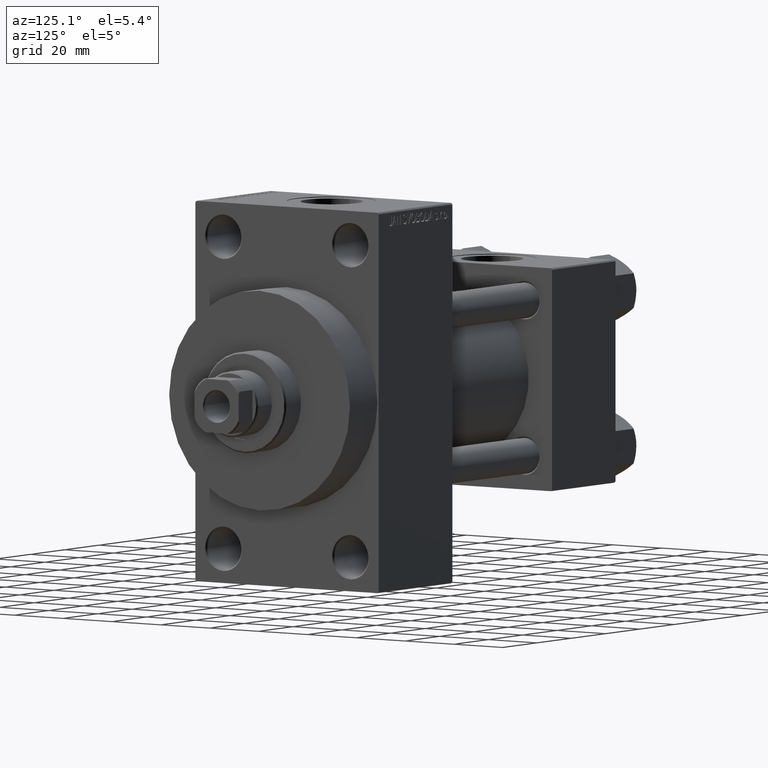
[diagram: clean part render]
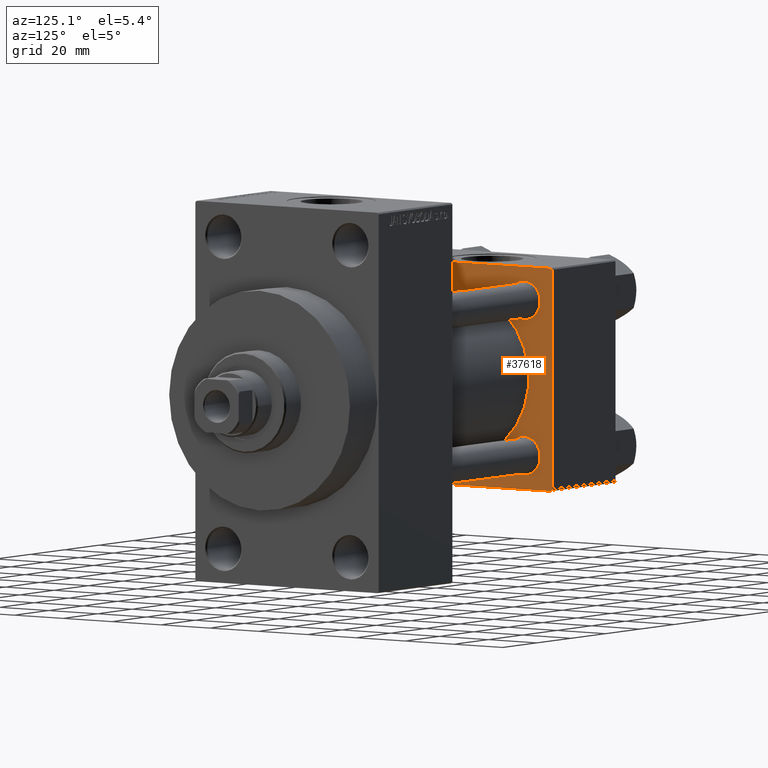
[diagram: same view with one face highlighted and labeled with its STEP entity id]
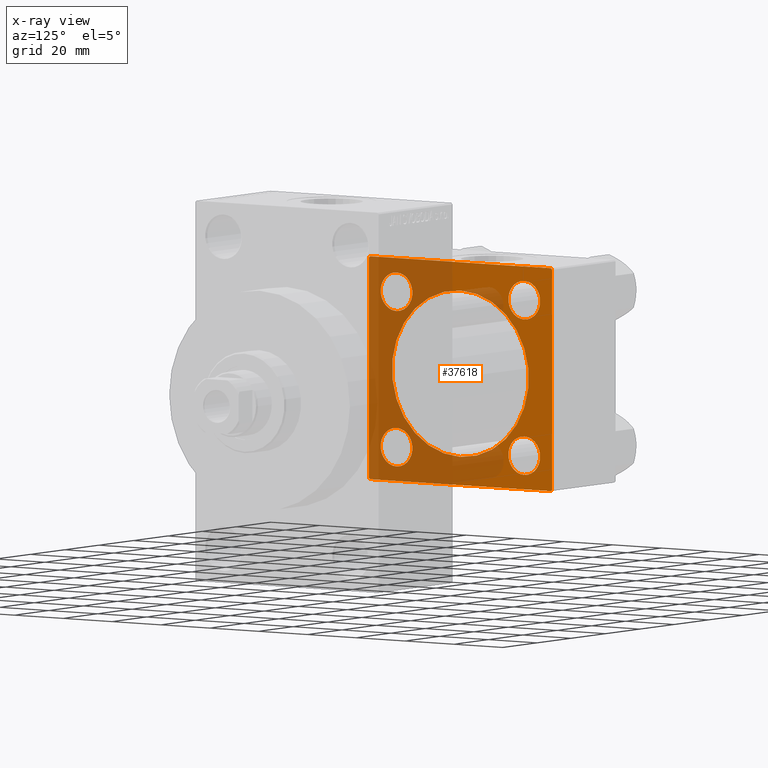
[diagram: x-ray of the same camera — body ghosted, the highlighted face saturated]
A machine part, auxiliary view. The second image highlights one B-rep face of the part: STEP entity #37618.
The next image is the same camera in x-ray: the body ghosted, the highlighted face saturated — about 56% of this face is hidden behind the body in this view.
In plain terms, the highlighted planar face has unit normal (-1, 0, 0).
Its self-contained STEP definition (entity closure, byte-faithful):
#270 = ORIENTED_EDGE ( 'NONE', *, *, #38122, .F. ) ;
#307 = LINE ( 'NONE', #7922, #35768 ) ;
#477 = EDGE_CURVE ( 'NONE', #6112, #10044, #6726, .T. ) ;
#540 = CARTESIAN_POINT ( 'NONE',  ( 37.00000000000000000, -2.602085213965210642E-15, 0.000000000000000000 ) ) ;
#747 = DIRECTION ( 'NONE',  ( -1.000000000000000000, 0.000000000000000000, -0.000000000000000000 ) ) ;
#1192 = DIRECTION ( 'NONE',  ( 0.000000000000000000, 0.000000000000000000, 1.000000000000000000 ) ) ;
#1312 = CIRCLE ( 'NONE', #18065, 28.00000000000000000 ) ;
#1314 = VERTEX_POINT ( 'NONE', #17971 ) ;
#1415 = ORIENTED_EDGE ( 'NONE', *, *, #32210, .T. ) ;
#1612 = CARTESIAN_POINT ( 'NONE',  ( 37.00000000000000000, 26.14999999999999858, 32.65000000000001279 ) ) ;
#2035 = FACE_BOUND ( 'NONE', #31685, .T. ) ;
#2546 = CARTESIAN_POINT ( 'NONE',  ( 37.00000000000000000, 26.14999999999999858, -19.65000000000000213 ) ) ;
#2827 = ORIENTED_EDGE ( 'NONE', *, *, #26771, .T. ) ;
#3508 = EDGE_CURVE ( 'NONE', #39314, #10044, #37313, .T. ) ;
#3521 = EDGE_CURVE ( 'NONE', #39314, #44108, #19188, .T. ) ;
#4007 = DIRECTION ( 'NONE',  ( 0.000000000000000000, -0.7071067811865474617, 0.7071067811865474617 ) ) ;
#4252 = LINE ( 'NONE', #25970, #19437 ) ;
#5144 = FACE_OUTER_BOUND ( 'NONE', #37288, .T. ) ;
#5381 = FACE_BOUND ( 'NONE', #20561, .T. ) ;
#6112 = VERTEX_POINT ( 'NONE', #38969 ) ;
#6436 = CARTESIAN_POINT ( 'NONE',  ( 37.00000000000000000, 36.99999999999997868, -37.50000000000000000 ) ) ;
#6726 = LINE ( 'NONE', #20375, #36550 ) ;
#6746 = CARTESIAN_POINT ( 'NONE',  ( 37.00000000000000000, -26.14999999999999147, 26.15000000000000924 ) ) ;
#6756 = ORIENTED_EDGE ( 'NONE', *, *, #28096, .T. ) ;
#6950 = DIRECTION ( 'NONE',  ( 0.000000000000000000, 0.000000000000000000, 1.000000000000000000 ) ) ;
#7117 = AXIS2_PLACEMENT_3D ( 'NONE', #29935, #15855, #26578 ) ;
#7324 = EDGE_CURVE ( 'NONE', #1314, #36589, #32040, .T. ) ;
#7671 = CARTESIAN_POINT ( 'NONE',  ( 37.00000000000000000, -26.14999999999999147, 32.65000000000007674 ) ) ;
#7681 = EDGE_LOOP ( 'NONE', ( #40381, #28949 ) ) ;
#7688 = VECTOR ( 'NONE', #8894, 1000.000000000000000 ) ;
#7782 = DIRECTION ( 'NONE',  ( -0.000000000000000000, -0.7071067811865474617, -0.7071067811865474617 ) ) ;
#7922 = CARTESIAN_POINT ( 'NONE',  ( 37.00000000000000000, -37.50000000000000711, 37.49999999999999289 ) ) ;
#8663 = CIRCLE ( 'NONE', #7117, 6.500000000000002665 ) ;
#8799 = CIRCLE ( 'NONE', #35463, 6.500000000000002665 ) ;
#8894 = DIRECTION ( 'NONE',  ( 0.000000000000000000, -1.000000000000000000, -9.251858538542972814E-17 ) ) ;
#9134 = CARTESIAN_POINT ( 'NONE',  ( 37.00000000000000000, 37.49999999999999289, -36.99999999999998579 ) ) ;
#9427 = CARTESIAN_POINT ( 'NONE',  ( 37.00000000000000000, -26.14999999999999147, 19.64999999999994529 ) ) ;
#9481 = AXIS2_PLACEMENT_3D ( 'NONE', #18384, #15760, #1192 ) ;
#9520 = VERTEX_POINT ( 'NONE', #32893 ) ;
#10044 = VERTEX_POINT ( 'NONE', #36777 ) ;
#10727 = EDGE_CURVE ( 'NONE', #19405, #15577, #33696, .T. ) ;
#11262 = CARTESIAN_POINT ( 'NONE',  ( 37.00000000000000000, -26.14999999999999147, 26.15000000000000924 ) ) ;
#11985 = AXIS2_PLACEMENT_3D ( 'NONE', #26631, #38078, #23766 ) ;
#12166 = VERTEX_POINT ( 'NONE', #22177 ) ;
#12819 = ORIENTED_EDGE ( 'NONE', *, *, #3508, .T. ) ;
#13787 = VECTOR ( 'NONE', #44486, 1000.000000000000114 ) ;
#14129 = DIRECTION ( 'NONE',  ( -1.000000000000000000, 0.000000000000000000, -0.000000000000000000 ) ) ;
#14363 = DIRECTION ( 'NONE',  ( -1.000000000000000000, 0.000000000000000000, -0.000000000000000000 ) ) ;
#14381 = DIRECTION ( 'NONE',  ( 0.000000000000000000, 9.251858538542971581E-17, -1.000000000000000000 ) ) ;
#14679 = EDGE_CURVE ( 'NONE', #36589, #1314, #8663, .T. ) ;
#14690 = VERTEX_POINT ( 'NONE', #26115 ) ;
#15239 = VERTEX_POINT ( 'NONE', #20651 ) ;
#15577 = VERTEX_POINT ( 'NONE', #7671 ) ;
#15760 = DIRECTION ( 'NONE',  ( -1.000000000000000000, 0.000000000000000000, -0.000000000000000000 ) ) ;
#15771 = DIRECTION ( 'NONE',  ( -1.000000000000000000, 0.000000000000000000, -0.000000000000000000 ) ) ;
#15855 = DIRECTION ( 'NONE',  ( -1.000000000000000000, 0.000000000000000000, -0.000000000000000000 ) ) ;
#15907 = FACE_BOUND ( 'NONE', #7681, .T. ) ;
#16154 = EDGE_LOOP ( 'NONE', ( #34438, #23842 ) ) ;
#16312 = CARTESIAN_POINT ( 'NONE',  ( 37.00000000000000000, 37.49999999999999289, -37.50000000000000000 ) ) ;
#17618 = EDGE_CURVE ( 'NONE', #19380, #14690, #33135, .T. ) ;
#17689 = CARTESIAN_POINT ( 'NONE',  ( 37.00000000000000000, 8.269258236473776482E-16, -28.00000000000000000 ) ) ;
#17971 = CARTESIAN_POINT ( 'NONE',  ( 37.00000000000000000, 26.14999999999999858, 19.64999999999999858 ) ) ;
#18065 = AXIS2_PLACEMENT_3D ( 'NONE', #540, #36072, #6950 ) ;
#18384 = CARTESIAN_POINT ( 'NONE',  ( 37.00000000000000000, 26.14999999999999858, -26.15000000000000213 ) ) ;
#18782 = CARTESIAN_POINT ( 'NONE',  ( 37.00000000000000000, -37.50000000000000711, 36.99999999999999289 ) ) ;
#19040 = DIRECTION ( 'NONE',  ( 0.000000000000000000, 0.000000000000000000, 1.000000000000000000 ) ) ;
#19188 = LINE ( 'NONE', #16312, #7688 ) ;
#19380 = VERTEX_POINT ( 'NONE', #28276 ) ;
#19405 = VERTEX_POINT ( 'NONE', #9427 ) ;
#19437 = VECTOR ( 'NONE', #4007, 1000.000000000000114 ) ;
#20375 = CARTESIAN_POINT ( 'NONE',  ( 37.00000000000000000, 37.49999999999999289, 37.50000000000000000 ) ) ;
#20561 = EDGE_LOOP ( 'NONE', ( #44211, #25828 ) ) ;
#20651 = CARTESIAN_POINT ( 'NONE',  ( 37.00000000000000000, -37.50000000000000711, 36.99999999999999289 ) ) ;
#21094 = AXIS2_PLACEMENT_3D ( 'NONE', #11262, #14129, #43260 ) ;
#21191 = AXIS2_PLACEMENT_3D ( 'NONE', #38648, #15771, #26729 ) ;
#21323 = DIRECTION ( 'NONE',  ( -1.000000000000000000, 0.000000000000000000, -0.000000000000000000 ) ) ;
#21803 = DIRECTION ( 'NONE',  ( 0.000000000000000000, 0.000000000000000000, 1.000000000000000000 ) ) ;
#22177 = CARTESIAN_POINT ( 'NONE',  ( 37.00000000000000000, 36.99999999999999289, 37.50000000000000000 ) ) ;
#22686 = ORIENTED_EDGE ( 'NONE', *, *, #30071, .T. ) ;
#23292 = DIRECTION ( 'NONE',  ( 1.000000000000000000, -0.000000000000000000, 0.000000000000000000 ) ) ;
#23526 = FACE_BOUND ( 'NONE', #40398, .T. ) ;
#23766 = DIRECTION ( 'NONE',  ( -0.000000000000000000, 0.000000000000000000, 1.000000000000000000 ) ) ;
#23842 = ORIENTED_EDGE ( 'NONE', *, *, #14679, .T. ) ;
#24046 = AXIS2_PLACEMENT_3D ( 'NONE', #26037, #747, #40115 ) ;
#24073 = LINE ( 'NONE', #32097, #25454 ) ;
#24168 = CIRCLE ( 'NONE', #33299, 28.00000000000000000 ) ;
#24535 = DIRECTION ( 'NONE',  ( -1.000000000000000000, 0.000000000000000000, -0.000000000000000000 ) ) ;
#24696 = CIRCLE ( 'NONE', #9481, 6.500000000000002665 ) ;
#24930 = DIRECTION ( 'NONE',  ( 0.000000000000000000, 0.7071067811865524577, -0.7071067811865426878 ) ) ;
#25454 = VECTOR ( 'NONE', #24930, 1000.000000000000000 ) ;
#25828 = ORIENTED_EDGE ( 'NONE', *, *, #38184, .T. ) ;
#25871 = CARTESIAN_POINT ( 'NONE',  ( 37.00000000000000000, -37.50000000000000000, -37.00000000000003553 ) ) ;
#25970 = CARTESIAN_POINT ( 'NONE',  ( 37.00000000000000000, 36.99999999999999289, 37.50000000000000000 ) ) ;
#26037 = CARTESIAN_POINT ( 'NONE',  ( 37.00000000000000000, -26.14999999999999147, -26.15000000000000924 ) ) ;
#26115 = CARTESIAN_POINT ( 'NONE',  ( 37.00000000000000000, -26.14999999999999147, -19.64999999999995239 ) ) ;
#26520 = VECTOR ( 'NONE', #45352, 1000.000000000000000 ) ;
#26578 = DIRECTION ( 'NONE',  ( 0.000000000000000000, 0.000000000000000000, 1.000000000000000000 ) ) ;
#26631 = CARTESIAN_POINT ( 'NONE',  ( 37.00000000000000000, 0.000000000000000000, 0.000000000000000000 ) ) ;
#26729 = DIRECTION ( 'NONE',  ( 0.000000000000000000, 0.000000000000000000, 1.000000000000000000 ) ) ;
#26771 = EDGE_CURVE ( 'NONE', #29746, #44108, #24073, .T. ) ;
#27106 = FACE_BOUND ( 'NONE', #16154, .T. ) ;
#27675 = LINE ( 'NONE', #37698, #26520 ) ;
#28096 = EDGE_CURVE ( 'NONE', #33599, #32996, #24696, .T. ) ;
#28276 = CARTESIAN_POINT ( 'NONE',  ( 37.00000000000000000, -26.14999999999999147, -32.65000000000006963 ) ) ;
#28827 = CARTESIAN_POINT ( 'NONE',  ( 37.00000000000000000, 26.14999999999999858, 26.15000000000000213 ) ) ;
#28949 = ORIENTED_EDGE ( 'NONE', *, *, #40418, .T. ) ;
#29160 = CARTESIAN_POINT ( 'NONE',  ( 37.00000000000000000, 26.14999999999999858, -26.15000000000000213 ) ) ;
#29487 = VECTOR ( 'NONE', #7782, 1000.000000000000114 ) ;
#29746 = VERTEX_POINT ( 'NONE', #25871 ) ;
#29935 = CARTESIAN_POINT ( 'NONE',  ( 37.00000000000000000, 26.14999999999999858, 26.15000000000000213 ) ) ;
#30071 = EDGE_CURVE ( 'NONE', #32996, #33599, #8799, .T. ) ;
#30455 = PLANE ( 'NONE',  #11985 ) ;
#30526 = ORIENTED_EDGE ( 'NONE', *, *, #40483, .T. ) ;
#31434 = ORIENTED_EDGE ( 'NONE', *, *, #37496, .T. ) ;
#31685 = EDGE_LOOP ( 'NONE', ( #6756, #22686 ) ) ;
#32040 = CIRCLE ( 'NONE', #38156, 6.500000000000002665 ) ;
#32097 = CARTESIAN_POINT ( 'NONE',  ( 37.00000000000000000, -37.00000000000002132, -37.50000000000000711 ) ) ;
#32210 = EDGE_CURVE ( 'NONE', #6112, #12166, #4252, .T. ) ;
#32275 = DIRECTION ( 'NONE',  ( 0.000000000000000000, 0.000000000000000000, -1.000000000000000000 ) ) ;
#32426 = ORIENTED_EDGE ( 'NONE', *, *, #477, .F. ) ;
#32504 = VERTEX_POINT ( 'NONE', #46347 ) ;
#32893 = CARTESIAN_POINT ( 'NONE',  ( 37.00000000000000000, -37.00000000000000711, 37.49999999999999289 ) ) ;
#32996 = VERTEX_POINT ( 'NONE', #2546 ) ;
#33135 = CIRCLE ( 'NONE', #24046, 6.500000000000057732 ) ;
#33299 = AXIS2_PLACEMENT_3D ( 'NONE', #36667, #23292, #34266 ) ;
#33385 = CARTESIAN_POINT ( 'NONE',  ( 37.00000000000000000, 26.14999999999999858, -32.65000000000000568 ) ) ;
#33599 = VERTEX_POINT ( 'NONE', #33385 ) ;
#33696 = CIRCLE ( 'NONE', #39772, 6.500000000000064837 ) ;
#34266 = DIRECTION ( 'NONE',  ( 0.000000000000000000, 0.000000000000000000, 1.000000000000000000 ) ) ;
#34438 = ORIENTED_EDGE ( 'NONE', *, *, #7324, .T. ) ;
#35463 = AXIS2_PLACEMENT_3D ( 'NONE', #29160, #14363, #36312 ) ;
#35768 = VECTOR ( 'NONE', #14381, 1000.000000000000000 ) ;
#36072 = DIRECTION ( 'NONE',  ( 1.000000000000000000, -0.000000000000000000, 0.000000000000000000 ) ) ;
#36312 = DIRECTION ( 'NONE',  ( 0.000000000000000000, 0.000000000000000000, 1.000000000000000000 ) ) ;
#36550 = VECTOR ( 'NONE', #32275, 1000.000000000000000 ) ;
#36589 = VERTEX_POINT ( 'NONE', #1612 ) ;
#36667 = CARTESIAN_POINT ( 'NONE',  ( 37.00000000000000000, -2.602085213965210642E-15, 0.000000000000000000 ) ) ;
#36777 = CARTESIAN_POINT ( 'NONE',  ( 37.00000000000000000, 37.49999999999999289, -36.99999999999998579 ) ) ;
#37288 = EDGE_LOOP ( 'NONE', ( #46320, #12819, #32426, #1415, #30526, #31434, #45777, #2827 ) ) ;
#37313 = LINE ( 'NONE', #9134, #13787 ) ;
#37496 = EDGE_CURVE ( 'NONE', #9520, #15239, #43602, .T. ) ;
#37551 = EDGE_CURVE ( 'NONE', #32504, #43049, #24168, .T. ) ;
#37618 = ADVANCED_FACE ( 'NONE', ( #15907, #2035, #5381, #27106, #23526, #5144 ), #30455, .F. ) ;
#37698 = CARTESIAN_POINT ( 'NONE',  ( 37.00000000000000000, 37.49999999999999289, 37.50000000000000000 ) ) ;
#37890 = CIRCLE ( 'NONE', #21094, 6.500000000000064837 ) ;
#38078 = DIRECTION ( 'NONE',  ( -1.000000000000000000, 0.000000000000000000, -0.000000000000000000 ) ) ;
#38122 = EDGE_CURVE ( 'NONE', #43049, #32504, #1312, .T. ) ;
#38156 = AXIS2_PLACEMENT_3D ( 'NONE', #28827, #24535, #19040 ) ;
#38184 = EDGE_CURVE ( 'NONE', #15577, #19405, #37890, .T. ) ;
#38648 = CARTESIAN_POINT ( 'NONE',  ( 37.00000000000000000, -26.14999999999999147, -26.15000000000000924 ) ) ;
#38969 = CARTESIAN_POINT ( 'NONE',  ( 37.00000000000000000, 37.49999999999999289, 37.00000000000000000 ) ) ;
#39314 = VERTEX_POINT ( 'NONE', #6436 ) ;
#39772 = AXIS2_PLACEMENT_3D ( 'NONE', #6746, #21323, #21803 ) ;
#40115 = DIRECTION ( 'NONE',  ( 0.000000000000000000, 0.000000000000000000, 1.000000000000000000 ) ) ;
#40381 = ORIENTED_EDGE ( 'NONE', *, *, #17618, .T. ) ;
#40398 = EDGE_LOOP ( 'NONE', ( #43916, #270 ) ) ;
#40418 = EDGE_CURVE ( 'NONE', #14690, #19380, #46345, .T. ) ;
#40483 = EDGE_CURVE ( 'NONE', #12166, #9520, #27675, .T. ) ;
#41165 = CARTESIAN_POINT ( 'NONE',  ( 37.00000000000000000, -37.00000000000002132, -37.50000000000000711 ) ) ;
#43049 = VERTEX_POINT ( 'NONE', #17689 ) ;
#43260 = DIRECTION ( 'NONE',  ( 0.000000000000000000, 0.000000000000000000, 1.000000000000000000 ) ) ;
#43406 = EDGE_CURVE ( 'NONE', #15239, #29746, #307, .T. ) ;
#43602 = LINE ( 'NONE', #18782, #29487 ) ;
#43916 = ORIENTED_EDGE ( 'NONE', *, *, #37551, .F. ) ;
#44108 = VERTEX_POINT ( 'NONE', #41165 ) ;
#44211 = ORIENTED_EDGE ( 'NONE', *, *, #10727, .T. ) ;
#44486 = DIRECTION ( 'NONE',  ( -0.000000000000000000, 0.7071067811865474617, 0.7071067811865474617 ) ) ;
#45352 = DIRECTION ( 'NONE',  ( 0.000000000000000000, -1.000000000000000000, -9.251858538542971581E-17 ) ) ;
#45777 = ORIENTED_EDGE ( 'NONE', *, *, #43406, .T. ) ;
#46320 = ORIENTED_EDGE ( 'NONE', *, *, #3521, .F. ) ;
#46345 = CIRCLE ( 'NONE', #21191, 6.500000000000057732 ) ;
#46347 = CARTESIAN_POINT ( 'NONE',  ( 37.00000000000000000, -2.602085213965210642E-15, 28.00000000000000000 ) ) ;